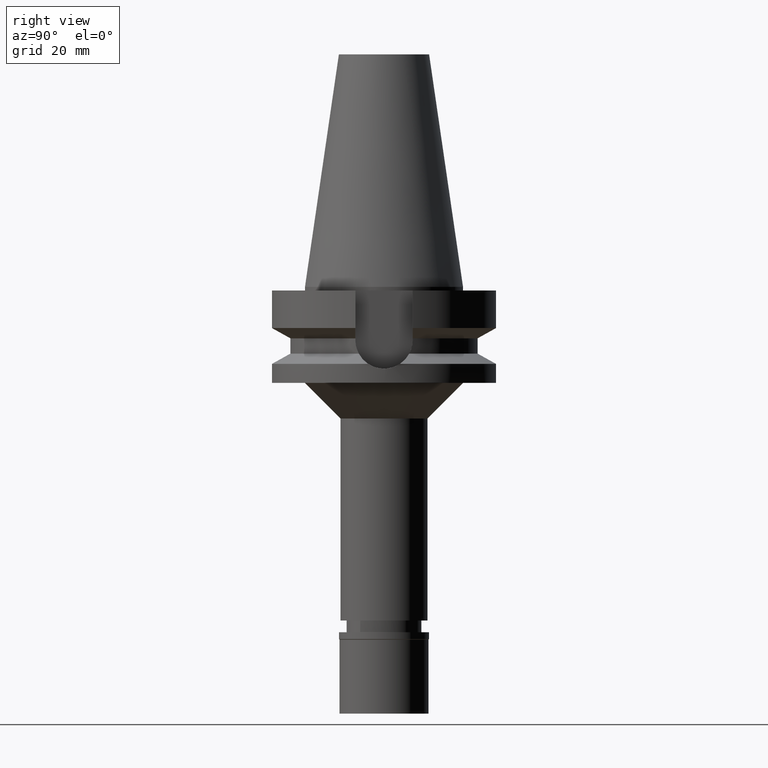
[diagram: clean part render]
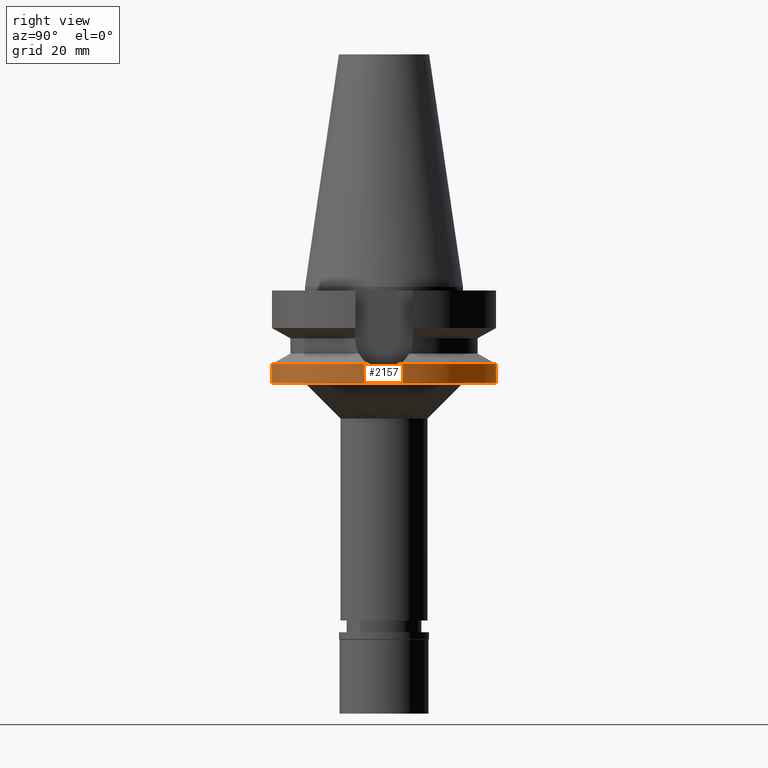
[diagram: same view with one face highlighted and labeled with its STEP entity id]
A machine part, right view. The second image highlights one B-rep face of the part: STEP entity #2157.
In plain terms, the highlighted cylindrical surface (partial cylindrical patch) has radius 31.5 mm, axis along (0, 0, -1).
Its self-contained STEP definition (entity closure, byte-faithful):
#59 = CARTESIAN_POINT ( 'NONE',  ( 31.46325238243603195, -1.570781957155565900, -22.85518007117975969 ) ) ;
#100 = CARTESIAN_POINT ( 'NONE',  ( 31.39916663537238506, -2.525608541233070437, -22.59614456806440330 ) ) ;
#230 = DIRECTION ( 'NONE',  ( 0.0000000000000000000, 1.099151708819000049E-13, -1.000000000000000000 ) ) ;
#344 = LINE ( 'NONE', #3005, #2086 ) ;
#348 = DIRECTION ( 'NONE',  ( 0.0000000000000000000, 0.0000000000000000000, -1.000000000000000000 ) ) ;
#354 = CARTESIAN_POINT ( 'NONE',  ( 31.17899877608999759, 4.485536235554000051, -21.63449434733000132 ) ) ;
#445 = ORIENTED_EDGE ( 'NONE', *, *, #1474, .T. ) ;
#454 = FACE_OUTER_BOUND ( 'NONE', #2442, .T. ) ;
#455 = EDGE_CURVE ( 'NONE', #865, #1089, #2299, .T. ) ;
#475 = CARTESIAN_POINT ( 'NONE',  ( 31.50000000000000000, 0.7893756722539666537, -22.99999998957000358 ) ) ;
#575 = CARTESIAN_POINT ( 'NONE',  ( 31.38348490650178491, -2.713186402841811784, -22.53162631746054245 ) ) ;
#631 = CARTESIAN_POINT ( 'NONE',  ( 0.0000000000000000000, 0.0000000000000000000, -21.63449434733000132 ) ) ;
#637 = EDGE_CURVE ( 'NONE', #1432, #982, #1246, .T. ) ;
#661 = CARTESIAN_POINT ( 'NONE',  ( 31.27447715648698434, 3.821865238563812994, -22.07984146721787155 ) ) ;
#672 = DIRECTION ( 'NONE',  ( 0.0000000000000000000, -1.000000000000000000, 0.0000000000000000000 ) ) ;
#810 = CIRCLE ( 'NONE', #2338, 31.50000000000000000 ) ;
#827 = DIRECTION ( 'NONE',  ( 0.0000000000000000000, 0.0000000000000000000, 1.000000000000000000 ) ) ;
#829 = VERTEX_POINT ( 'NONE', #354 ) ;
#855 = DIRECTION ( 'NONE',  ( 0.0000000000000000000, -1.000000000000000000, 0.0000000000000000000 ) ) ;
#865 = VERTEX_POINT ( 'NONE', #1850 ) ;
#903 = ORIENTED_EDGE ( 'NONE', *, *, #1660, .T. ) ;
#919 = CARTESIAN_POINT ( 'NONE',  ( 31.35694685681279736, 3.093519140186014038, -22.42398081544561705 ) ) ;
#938 = B_SPLINE_CURVE_WITH_KNOTS ( 'NONE', 3,
 ( #1733, #2472, #2227, #59, #2505, #100, #575, #1022, #1991, #1509, #1052, #1544 ),
 .UNSPECIFIED., .F., .F.,
 ( 4, 2, 2, 2, 2, 4 ),
 ( 0.0000000000000000000, 0.2500000000000002220, 0.5000000000000004441, 0.6250000000000005551, 0.7500000000000006661, 1.000000000000000000 ),
 .UNSPECIFIED. ) ;
#982 = VERTEX_POINT ( 'NONE', #1599 ) ;
#1022 = CARTESIAN_POINT ( 'NONE',  ( 31.34930395803687375, -3.083122877831014463, -22.38885229937690724 ) ) ;
#1031 = ORIENTED_EDGE ( 'NONE', *, *, #1437, .T. ) ;
#1052 = CARTESIAN_POINT ( 'NONE',  ( 31.22673952729567048, -4.153689886491600980, -21.85717518839573614 ) ) ;
#1089 = VERTEX_POINT ( 'NONE', #1932 ) ;
#1090 = CARTESIAN_POINT ( 'NONE',  ( 0.0000000000000000000, 31.50000000000000000, -21.63449434733000132 ) ) ;
#1212 = CARTESIAN_POINT ( 'NONE',  ( 0.0000000000000000000, 0.0000000000000000000, 0.0000000000000000000 ) ) ;
#1246 = LINE ( 'NONE', #1954, #3046 ) ;
#1278 = AXIS2_PLACEMENT_3D ( 'NONE', #2831, #2817, #1860 ) ;
#1316 = CARTESIAN_POINT ( 'NONE',  ( 0.0000000000000000000, 0.0000000000000000000, -27.00000000000000000 ) ) ;
#1432 = VERTEX_POINT ( 'NONE', #1090 ) ;
#1437 = EDGE_CURVE ( 'NONE', #1755, #982, #810, .T. ) ;
#1474 = EDGE_CURVE ( 'NONE', #1432, #829, #1972, .T. ) ;
#1509 = CARTESIAN_POINT ( 'NONE',  ( 31.27123001957007276, -3.806912310921719111, -22.05416774127887081 ) ) ;
#1544 = CARTESIAN_POINT ( 'NONE',  ( 31.17899877608999759, -4.485536235554000051, -21.63449434733000132 ) ) ;
#1599 = CARTESIAN_POINT ( 'NONE',  ( 0.0000000000000000000, 31.50000000000000000, -27.00000000000000000 ) ) ;
#1629 = CARTESIAN_POINT ( 'NONE',  ( 31.46967416866528566, 1.577207839734384054, -22.88365376544188123 ) ) ;
#1642 = CARTESIAN_POINT ( 'NONE',  ( 31.17899877608999759, 4.485536235554000051, -21.63449434733000132 ) ) ;
#1645 = VERTEX_POINT ( 'NONE', #2354 ) ;
#1655 = DIRECTION ( 'NONE',  ( 0.0000000000000000000, 0.0000000000000000000, -1.000000000000000000 ) ) ;
#1660 = EDGE_CURVE ( 'NONE', #829, #1645, #2889, .T. ) ;
#1662 = ORIENTED_EDGE ( 'NONE', *, *, #637, .F. ) ;
#1733 = CARTESIAN_POINT ( 'NONE',  ( 31.49999994687999916, 0.0000000000000000000, -22.99999998957000003 ) ) ;
#1755 = VERTEX_POINT ( 'NONE', #2491 ) ;
#1850 = CARTESIAN_POINT ( 'NONE',  ( 31.17899877608999759, -4.485536235554000051, -21.63449434733000132 ) ) ;
#1854 = EDGE_CURVE ( 'NONE', #1089, #1755, #344, .T. ) ;
#1860 = DIRECTION ( 'NONE',  ( 0.9898094849552905306, -0.1423979757318985240, 0.0000000000000000000 ) ) ;
#1932 = CARTESIAN_POINT ( 'NONE',  ( 0.0000000000000000000, -31.50000000000000000, -21.63449434733000132 ) ) ;
#1954 = CARTESIAN_POINT ( 'NONE',  ( 0.0000000000000000000, 31.50000000000000000, -21.63449434733000132 ) ) ;
#1972 = CIRCLE ( 'NONE', #2882, 31.50000000000000000 ) ;
#1991 = CARTESIAN_POINT ( 'NONE',  ( 31.33092732165932404, -3.264367509162847458, -22.31112413832966723 ) ) ;
#2031 = ORIENTED_EDGE ( 'NONE', *, *, #1854, .T. ) ;
#2086 = VECTOR ( 'NONE', #2988, 1000.000000000000000 ) ;
#2157 = ADVANCED_FACE ( 'NONE', ( #454 ), #2413, .T. ) ;
#2172 = CARTESIAN_POINT ( 'NONE',  ( 31.49999994687999916, 0.0000000000000000000, -22.99999998957000003 ) ) ;
#2227 = CARTESIAN_POINT ( 'NONE',  ( 31.49259412242832212, -0.7874781760693010391, -22.97109479644503338 ) ) ;
#2270 = ORIENTED_EDGE ( 'NONE', *, *, #2795, .T. ) ;
#2299 = CIRCLE ( 'NONE', #1278, 31.50000000000001421 ) ;
#2338 = AXIS2_PLACEMENT_3D ( 'NONE', #1316, #827, #855 ) ;
#2354 = CARTESIAN_POINT ( 'NONE',  ( 31.49999994687999916, 0.0000000000000000000, -22.99999998957000003 ) ) ;
#2413 = CYLINDRICAL_SURFACE ( 'NONE', #2728, 31.50000000000000000 ) ;
#2442 = EDGE_LOOP ( 'NONE', ( #3001, #2031, #1031, #1662, #445, #903, #2270 ) ) ;
#2472 = CARTESIAN_POINT ( 'NONE',  ( 31.50000000000000000, -0.3946751340926143992, -22.99999998957000358 ) ) ;
#2491 = CARTESIAN_POINT ( 'NONE',  ( 0.0000000000000000000, -31.50000000000000000, -27.00000000000000000 ) ) ;
#2505 = CARTESIAN_POINT ( 'NONE',  ( 31.44158116644243250, -1.955103412032439980, -22.76909304456209782 ) ) ;
#2527 = DIRECTION ( 'NONE',  ( 0.0000000000000000000, 1.000000000000000000, 0.0000000000000000000 ) ) ;
#2728 = AXIS2_PLACEMENT_3D ( 'NONE', #1212, #1655, #672 ) ;
#2795 = EDGE_CURVE ( 'NONE', #1645, #865, #938, .T. ) ;
#2817 = DIRECTION ( 'NONE',  ( 0.0000000000000000000, 0.0000000000000000000, -1.000000000000000000 ) ) ;
#2831 = CARTESIAN_POINT ( 'NONE',  ( 0.0000000000000000000, 0.0000000000000000000, -21.63449434733000132 ) ) ;
#2882 = AXIS2_PLACEMENT_3D ( 'NONE', #631, #348, #2527 ) ;
#2889 = B_SPLINE_CURVE_WITH_KNOTS ( 'NONE', 3,
 ( #1642, #661, #919, #1629, #475, #2172 ),
 .UNSPECIFIED., .F., .F.,
 ( 4, 2, 4 ),
 ( 0.0000000000000000000, 0.5000000000000000000, 1.000000000000000000 ),
 .UNSPECIFIED. ) ;
#2988 = DIRECTION ( 'NONE',  ( 0.0000000000000000000, -1.099151708819000049E-13, -1.000000000000000000 ) ) ;
#3001 = ORIENTED_EDGE ( 'NONE', *, *, #455, .T. ) ;
#3005 = CARTESIAN_POINT ( 'NONE',  ( 0.0000000000000000000, -31.50000000000000000, -21.63449434733000132 ) ) ;
#3046 = VECTOR ( 'NONE', #230, 1000.000000000000000 ) ;